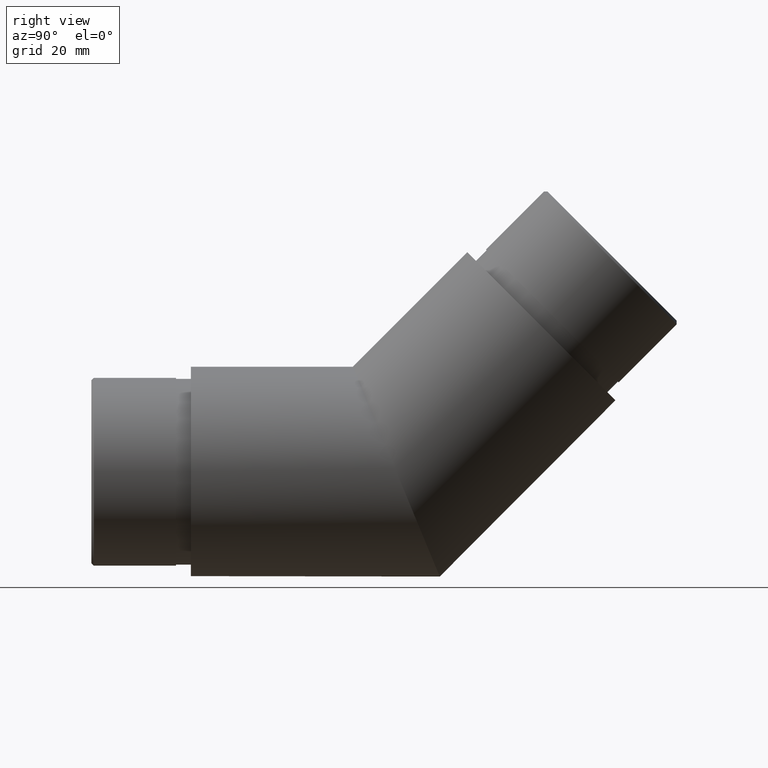
[diagram: clean part render]
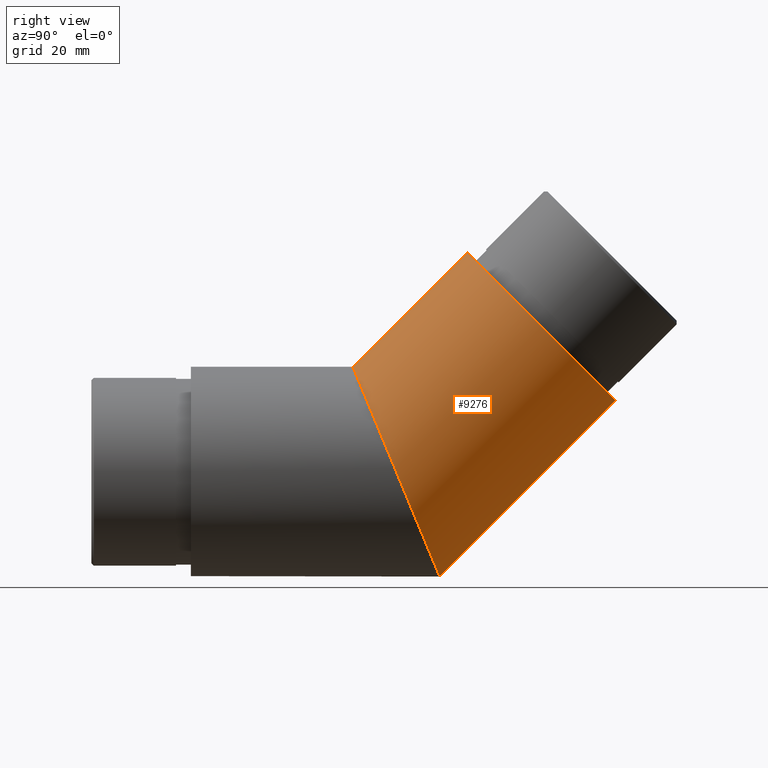
[diagram: same view with one face highlighted and labeled with its STEP entity id]
A machine part, right view. The second image highlights one B-rep face of the part: STEP entity #9276.
In plain terms, the highlighted cylindrical surface (bore or boss wall) has radius 21.1 mm, axis along (0, 0.7071, 0.7071).
Its self-contained STEP definition (entity closure, byte-faithful):
#357 = EDGE_CURVE ( 'NONE', #10304, #10304, #4516, .T. ) ;
#402 = VERTEX_POINT ( 'NONE', #5418 ) ;
#453 = CARTESIAN_POINT ( 'NONE',  ( -42.19999999999999600, 50.00000000000002100, -21.10000000000000100 ) ) ;
#1154 = EDGE_LOOP ( 'NONE', ( #7335 ) ) ;
#1723 = AXIS2_PLACEMENT_3D ( 'NONE', #11986, #5507, #6599 ) ;
#2593 = DIRECTION ( 'NONE',  ( 0.0000000000000000000, -0.7071067811865487900, 0.7071067811865463500 ) ) ;
#3586 = CARTESIAN_POINT ( 'NONE',  ( 42.19999999999999600, 50.00000000000002100, -21.09999999999999400 ) ) ;
#3635 =( BOUNDED_CURVE ( )  B_SPLINE_CURVE ( 3, ( #4728, #4819, #3586, #9964, #453, #7922, #10022 ),
 .UNSPECIFIED., .T., .F. ) 
 B_SPLINE_CURVE_WITH_KNOTS ( ( 4, 3, 4 ),
 ( 0.0000000000000000000, 3.141592653589793100, 6.283185307179586200 ),
 .UNSPECIFIED. ) 
 CURVE ( )  GEOMETRIC_REPRESENTATION_ITEM ( )  RATIONAL_B_SPLINE_CURVE ( ( 1.000000000000000000, 0.3333333333333333700, 0.3333333333333333700, 1.000000000000000000, 0.3333333333333333700, 0.3333333333333333700, 1.000000000000000000 ) ) 
 REPRESENTATION_ITEM ( '' )  );
#4516 = CIRCLE ( 'NONE', #4525, 21.09999999999999400 ) ;
#4520 = FACE_OUTER_BOUND ( 'NONE', #6555, .T. ) ;
#4525 = AXIS2_PLACEMENT_3D ( 'NONE', #12258, #13254, #2593 ) ;
#4728 = CARTESIAN_POINT ( 'NONE',  ( 0.0000000000000000000, 32.52018766785536000, 21.09999999999999800 ) ) ;
#4819 = CARTESIAN_POINT ( 'NONE',  ( 42.19999999999999600, 32.52018766785536000, 21.09999999999999800 ) ) ;
#5186 = CYLINDRICAL_SURFACE ( 'NONE', #1723, 21.09999999999999800 ) ;
#5418 = CARTESIAN_POINT ( 'NONE',  ( 0.0000000000000000000, 32.52018766785536000, 21.09999999999999800 ) ) ;
#5507 = DIRECTION ( 'NONE',  ( 0.0000000000000000000, 0.7071067811865463500, 0.7071067811865487900 ) ) ;
#6315 = FACE_OUTER_BOUND ( 'NONE', #1154, .T. ) ;
#6555 = EDGE_LOOP ( 'NONE', ( #8725 ) ) ;
#6599 = DIRECTION ( 'NONE',  ( 0.0000000000000000000, -0.7071067811865487900, 0.7071067811865463500 ) ) ;
#7335 = ORIENTED_EDGE ( 'NONE', *, *, #357, .T. ) ;
#7922 = CARTESIAN_POINT ( 'NONE',  ( -42.19999999999999600, 32.52018766785536000, 21.09999999999999800 ) ) ;
#8605 = CARTESIAN_POINT ( 'NONE',  ( 0.0000000000000000000, 55.51543289325497500, 44.09524522539968700 ) ) ;
#8725 = ORIENTED_EDGE ( 'NONE', *, *, #9034, .T. ) ;
#9034 = EDGE_CURVE ( 'NONE', #402, #402, #3635, .T. ) ;
#9276 = ADVANCED_FACE ( 'NONE', ( #4520, #6315 ), #5186, .T. ) ;
#9964 = CARTESIAN_POINT ( 'NONE',  ( 2.584004746200915400E-015, 50.00000000000001400, -21.09999999999999800 ) ) ;
#10022 = CARTESIAN_POINT ( 'NONE',  ( 0.0000000000000000000, 32.52018766785536000, 21.09999999999999800 ) ) ;
#10304 = VERTEX_POINT ( 'NONE', #8605 ) ;
#11986 = CARTESIAN_POINT ( 'NONE',  ( 0.0000000000000000000, 41.26009383392769100, 0.0000000000000000000 ) ) ;
#12258 = CARTESIAN_POINT ( 'NONE',  ( 0.0000000000000000000, 70.43538597629114400, 29.17529214236356700 ) ) ;
#13254 = DIRECTION ( 'NONE',  ( -0.0000000000000000000, -0.7071067811865463500, -0.7071067811865487900 ) ) ;